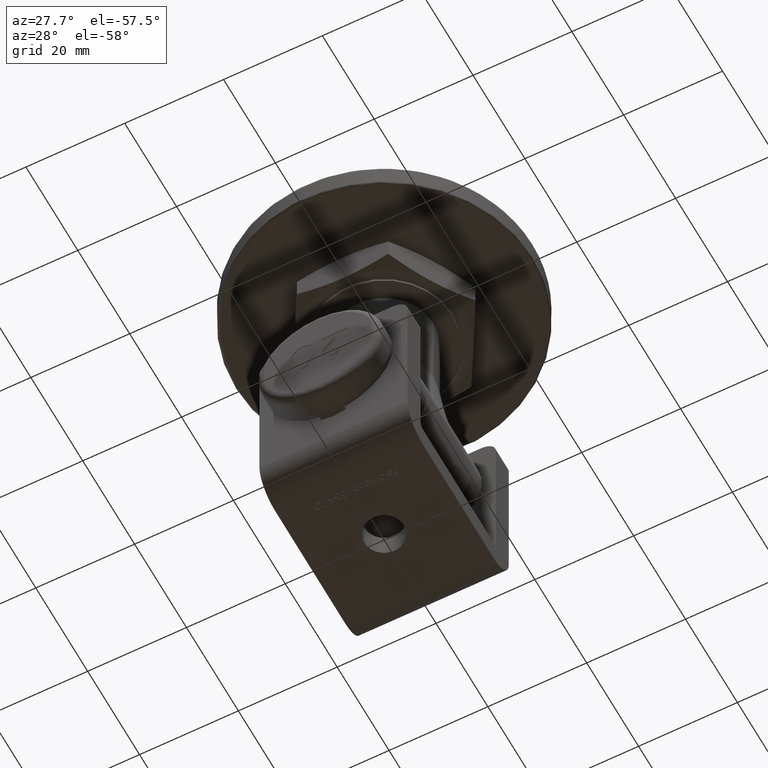
[diagram: clean part render]
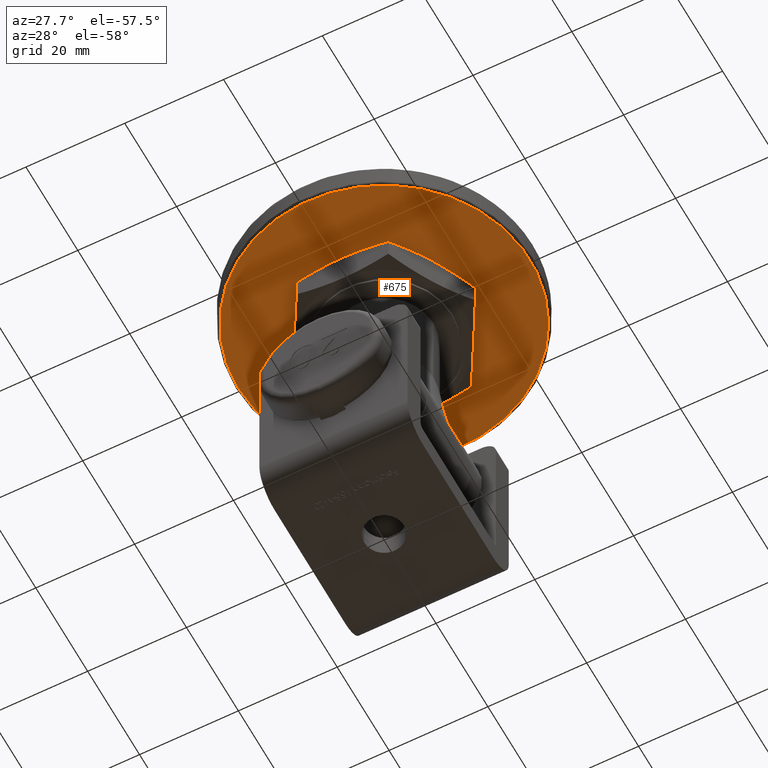
[diagram: same view with one face highlighted and labeled with its STEP entity id]
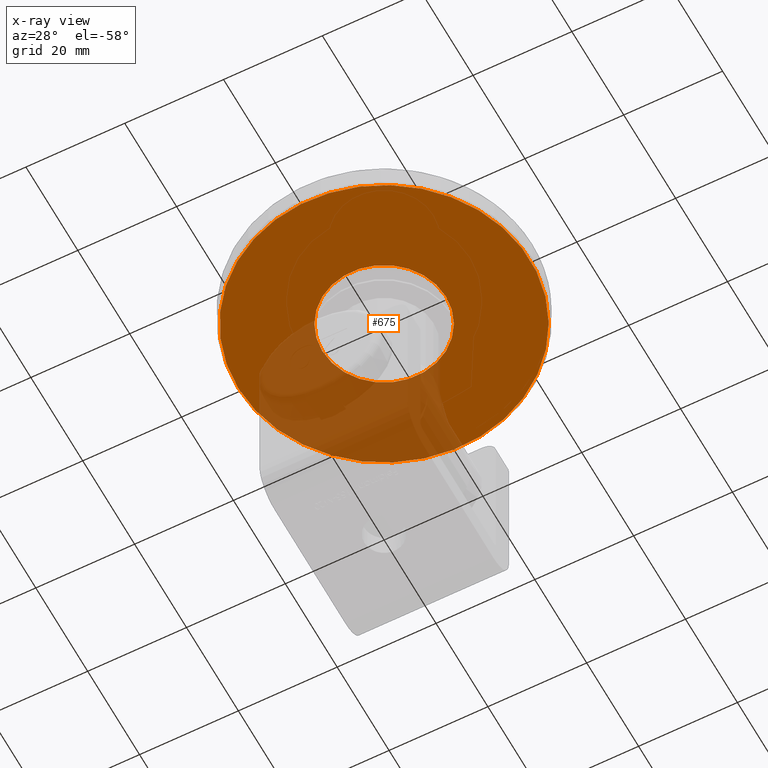
[diagram: x-ray of the same camera — body ghosted, the highlighted face saturated]
A machine part, auxiliary view. The second image highlights one B-rep face of the part: STEP entity #675.
The next image is the same camera in x-ray: the body ghosted, the highlighted face saturated — about 28% of this face is hidden behind the body in this view.
In plain terms, the highlighted planar face has unit normal (0, 0, -1).
Its self-contained STEP definition (entity closure, byte-faithful):
#245 = EDGE_LOOP ( 'NONE', ( #3978 ) ) ;
#675 = ADVANCED_FACE ( 'NONE', ( #740, #7726 ), #10945, .T. ) ;
#740 = FACE_OUTER_BOUND ( 'NONE', #15178, .T. ) ;
#1431 = CARTESIAN_POINT ( 'NONE',  ( 0.000000000000000000, 0.000000000000000000, 5.000000000000000000 ) ) ;
#1786 = VERTEX_POINT ( 'NONE', #9980 ) ;
#2556 = DIRECTION ( 'NONE',  ( 0.000000000000000000, 0.000000000000000000, 1.000000000000000000 ) ) ;
#2595 = VERTEX_POINT ( 'NONE', #14513 ) ;
#3430 = CIRCLE ( 'NONE', #9327, 29.50000000000000000 ) ;
#3471 = CARTESIAN_POINT ( 'NONE',  ( 0.000000000000000000, 0.000000000000000000, 4.999999999999997335 ) ) ;
#3629 = DIRECTION ( 'NONE',  ( 0.000000000000000000, 0.000000000000000000, 1.000000000000000000 ) ) ;
#3978 = ORIENTED_EDGE ( 'NONE', *, *, #10226, .F. ) ;
#5820 = DIRECTION ( 'NONE',  ( 1.000000000000000000, 0.000000000000000000, 0.000000000000000000 ) ) ;
#7726 = FACE_BOUND ( 'NONE', #245, .T. ) ;
#7953 = AXIS2_PLACEMENT_3D ( 'NONE', #1431, #13346, #12092 ) ;
#8040 = ORIENTED_EDGE ( 'NONE', *, *, #14948, .T. ) ;
#8455 = CARTESIAN_POINT ( 'NONE',  ( 0.000000000000000000, 0.000000000000000000, 5.000000000000000000 ) ) ;
#9327 = AXIS2_PLACEMENT_3D ( 'NONE', #8455, #2556, #12157 ) ;
#9980 = CARTESIAN_POINT ( 'NONE',  ( 29.50000000000000000, 0.000000000000000000, 5.000000000000000000 ) ) ;
#10226 = EDGE_CURVE ( 'NONE', #2595, #2595, #10699, .T. ) ;
#10699 = CIRCLE ( 'NONE', #12616, 12.50000000000000000 ) ;
#10945 = PLANE ( 'NONE',  #7953 ) ;
#12092 = DIRECTION ( 'NONE',  ( 1.000000000000000000, 0.000000000000000000, -0.000000000000000000 ) ) ;
#12157 = DIRECTION ( 'NONE',  ( 1.000000000000000000, 0.000000000000000000, 0.000000000000000000 ) ) ;
#12616 = AXIS2_PLACEMENT_3D ( 'NONE', #3471, #3629, #5820 ) ;
#13346 = DIRECTION ( 'NONE',  ( 0.000000000000000000, 0.000000000000000000, 1.000000000000000000 ) ) ;
#14513 = CARTESIAN_POINT ( 'NONE',  ( 12.50000000000000000, 0.000000000000000000, 4.999999999999997335 ) ) ;
#14948 = EDGE_CURVE ( 'NONE', #1786, #1786, #3430, .T. ) ;
#15178 = EDGE_LOOP ( 'NONE', ( #8040 ) ) ;